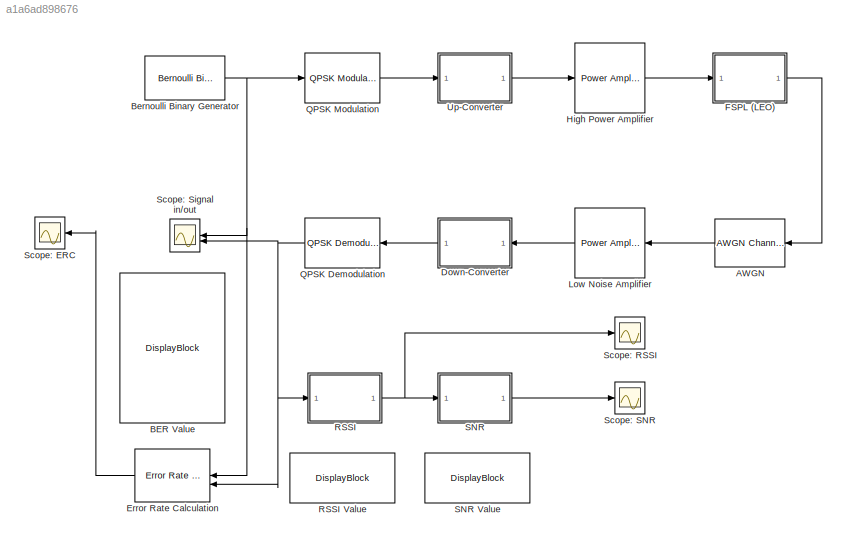
MODEL slx_a1a6ad898676
KIND model
CONFIG AbsTol = auto
CONFIG EnableMultiTasking = off
CONFIG FixedStep = auto
CONFIG MaxStep = auto
CONFIG MinStep = auto
CONFIG RelTol = 1e-3
CONFIG SampleTimeConstraint = Unconstrained
CONFIG SolverName = VariableStepAuto
CONFIG StartTime = 0.0
CONFIG StopTime = 10
BLOCK [Reference] AWGN  REF=commchan3/AWGN
Channel
  NameLocation = top
  SourceBlock = commchan3/AWGN\nChannel
  SourceType = AWGN Channel
BLOCK [DisplayBlock] BER Value
  Transparency = 1
BLOCK [Reference] Bernoulli Binary Generator  REF=commrandsrc3/Bernoulli Binary
Generator
  SourceBlock = commrandsrc3/Bernoulli Binary\nGenerator
  SourceType = Bernoulli Binary Generator
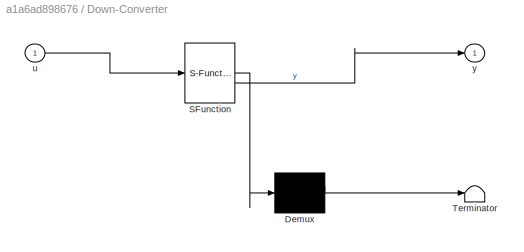
BLOCK [SubSystem] Down-Converter
  ErrorFcn = Stateflow.Translate.translate
  LibrarySourceBlock = simulink/User-Defined\nFunctions/MATLAB Function
  NameLocation = top
  PermitHierarchicalResolution = ExplicitOnly
  SFBlockType = MATLAB Function
  TreatAsAtomicUnit = on
BLOCK [Demux] Down-Converter/ Demux 
  Outputs = 1
BLOCK [S-Function] Down-Converter/ SFunction 
  EnableBusSupport = on
  FunctionName = sf_sfun
  PortCounts = [1 2]
  SFcnIsStateOwnerBlock = off
  SFunctionDeploymentMode = off
  Tag = Stateflow S-Function 5
BLOCK [Terminator] Down-Converter/ Terminator 
BLOCK [Inport] Down-Converter/u
BLOCK [Outport] Down-Converter/y
BLOCK [Reference] Error Rate Calculation  REF=commsink2/Error Rate
Calculation
  NameLocation = top
  SourceBlock = commsink2/Error Rate\nCalculation
  SourceType = Error Rate Calculation
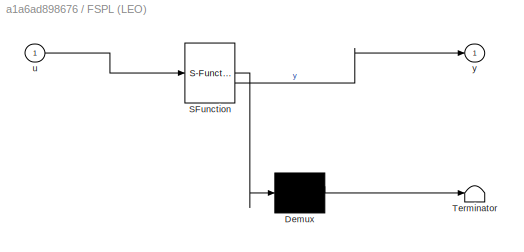
BLOCK [SubSystem] FSPL (LEO)
  ErrorFcn = Stateflow.Translate.translate
  LibrarySourceBlock = simulink/User-Defined\nFunctions/MATLAB Function
  PermitHierarchicalResolution = ExplicitOnly
  SFBlockType = MATLAB Function
  TreatAsAtomicUnit = on
BLOCK [Demux] FSPL (LEO)/ Demux 
  Outputs = 1
BLOCK [S-Function] FSPL (LEO)/ SFunction 
  EnableBusSupport = on
  FunctionName = sf_sfun
  PortCounts = [1 2]
  SFcnIsStateOwnerBlock = off
  SFunctionDeploymentMode = off
  Tag = Stateflow S-Function 3
BLOCK [Terminator] FSPL (LEO)/ Terminator 
BLOCK [Inport] FSPL (LEO)/u
BLOCK [Outport] FSPL (LEO)/y
BLOCK [Reference] High Power Amplifier  REF=rfmathmodels2/Power Amplifier
  SourceBlock = rfmathmodels2/Power Amplifier
  SourceType = rf.PAmemory
BLOCK [Reference] Low Noise Amplifier  REF=rfmathmodels2/Power Amplifier
  NameLocation = top
  SourceBlock = rfmathmodels2/Power Amplifier
  SourceType = rf.PAmemory
BLOCK [Reference] QPSK Demodulation  REF=commdigbbndpm3/QPSK
Demodulator
Baseband
  NameLocation = top
  SourceBlock = commdigbbndpm3/QPSK\nDemodulator\nBaseband
  SourceType = QPSK Demodulator Baseband
BLOCK [Reference] QPSK Modulation  REF=commdigbbndpm3/QPSK
Modulator
Baseband
  SourceBlock = commdigbbndpm3/QPSK\nModulator\nBaseband
  SourceType = QPSK Modulator Baseband
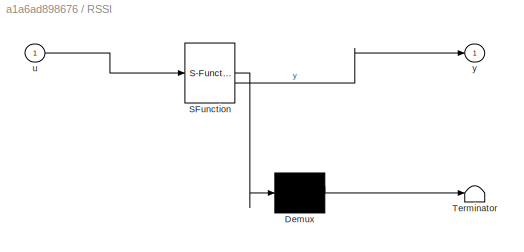
BLOCK [SubSystem] RSSI
  ErrorFcn = Stateflow.Translate.translate
  LibrarySourceBlock = simulink/User-Defined\nFunctions/MATLAB Function
  PermitHierarchicalResolution = ExplicitOnly
  SFBlockType = MATLAB Function
  TreatAsAtomicUnit = on
BLOCK [DisplayBlock] RSSI Value
  Transparency = 1
BLOCK [Demux] RSSI/ Demux 
  Outputs = 1
BLOCK [S-Function] RSSI/ SFunction 
  EnableBusSupport = on
  FunctionName = sf_sfun
  PortCounts = [1 2]
  SFcnIsStateOwnerBlock = off
  SFunctionDeploymentMode = off
  Tag = Stateflow S-Function 2
BLOCK [Terminator] RSSI/ Terminator 
BLOCK [Inport] RSSI/u
BLOCK [Outport] RSSI/y
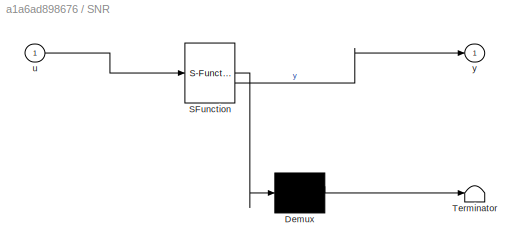
BLOCK [SubSystem] SNR
  ErrorFcn = Stateflow.Translate.translate
  LibrarySourceBlock = simulink/User-Defined\nFunctions/MATLAB Function
  PermitHierarchicalResolution = ExplicitOnly
  SFBlockType = MATLAB Function
  TreatAsAtomicUnit = on
BLOCK [DisplayBlock] SNR Value
  Transparency = 1
BLOCK [Demux] SNR/ Demux 
  Outputs = 1
BLOCK [S-Function] SNR/ SFunction 
  EnableBusSupport = on
  FunctionName = sf_sfun
  PortCounts = [1 2]
  SFcnIsStateOwnerBlock = off
  SFunctionDeploymentMode = off
  Tag = Stateflow S-Function 1
BLOCK [Terminator] SNR/ Terminator 
BLOCK [Inport] SNR/u
BLOCK [Outport] SNR/y
BLOCK [Scope] Scope: ERC
  Floating = off
  NameLocation = top
  NumInputPorts = 1
  ScopeSpecificationString = Simulink.scopes.TimeScopeBlockCfg('CurrentConfiguration', extmgr.ConfigurationSet(extmgr.Configuration('Core','General UI',true),extmgr.Configuration('Core','Source UI',true),extmgr.Configuration('Sources','WiredSimulink',true,'DataLoggingVariableName','ScopeData1'),extmgr.Configuration('Visuals','Time Domain',true,'SerializedDisplays',{struct('MinYLimReal','-78.63458','MaxYLimReal','-66.70654','Y...<+1489ch>
BLOCK [Scope] Scope: RSSI
  Floating = off
  NumInputPorts = 1
  ScopeSpecificationString = Simulink.scopes.TimeScopeBlockCfg('CurrentConfiguration', extmgr.ConfigurationSet(extmgr.Configuration('Core','General UI',true),extmgr.Configuration('Core','Source UI',true),extmgr.Configuration('Sources','WiredSimulink',true,'DataLoggingVariableName','ScopeData1'),extmgr.Configuration('Visuals','Time Domain',true,'SerializedDisplays',{struct('MinYLimReal','-78.63458','MaxYLimReal','-66.70654','Y...<+1371ch>
BLOCK [Scope] Scope: SNR
  Floating = off
  NumInputPorts = 1
  ScopeSpecificationString = Simulink.scopes.TimeScopeBlockCfg('CurrentConfiguration', extmgr.ConfigurationSet(extmgr.Configuration('Core','General UI',true),extmgr.Configuration('Core','Source UI',true),extmgr.Configuration('Sources','WiredSimulink',true),extmgr.Configuration('Visuals','Time Domain',true,'SerializedDisplays',{struct('MinYLimReal','22.34265','MaxYLimReal','34.27069','YLabelReal','','MinYLimMag','22.34265','Ma...<+1357ch>
BLOCK [Scope] Scope: Signal in//out
  Floating = off
  NameLocation = top
  NumInputPorts = 2
  ScopeSpecificationString = Simulink.scopes.TimeScopeBlockCfg('CurrentConfiguration', extmgr.ConfigurationSet(extmgr.Configuration('Core','General UI',true),extmgr.Configuration('Core','Source UI',true),extmgr.Configuration('Sources','WiredSimulink',true,'DataLoggingVariableName','ScopeData2'),extmgr.Configuration('Visuals','Time Domain',true,'SerializedDisplays',{struct('MinYLimReal','1.68558','MaxYLimReal','1.6858','YLabel...<+1446ch>
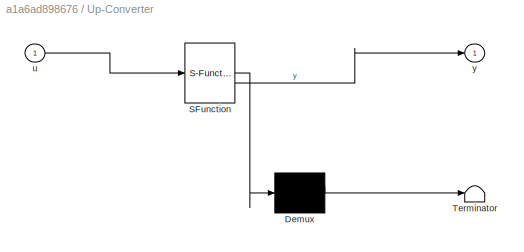
BLOCK [SubSystem] Up-Converter
  ErrorFcn = Stateflow.Translate.translate
  LibrarySourceBlock = simulink/User-Defined\nFunctions/MATLAB Function
  PermitHierarchicalResolution = ExplicitOnly
  SFBlockType = MATLAB Function
  TreatAsAtomicUnit = on
BLOCK [Demux] Up-Converter/ Demux 
  Outputs = 1
BLOCK [S-Function] Up-Converter/ SFunction 
  EnableBusSupport = on
  FunctionName = sf_sfun
  PortCounts = [1 2]
  SFcnIsStateOwnerBlock = off
  SFunctionDeploymentMode = off
  Tag = Stateflow S-Function 4
BLOCK [Terminator] Up-Converter/ Terminator 
BLOCK [Inport] Up-Converter/u
BLOCK [Outport] Up-Converter/y
LINE AWGN:1 -> Low Noise Amplifier:1
NET Bernoulli Binary Generator:1 -> Error Rate Calculation:1, QPSK Modulation:1, Scope: Signal in//out:1
LINE Down-Converter:1 -> QPSK Demodulation:1
LINE Error Rate Calculation:1 -> Scope: ERC:1
LINE FSPL (LEO):1 -> AWGN:1
LINE High Power Amplifier:1 -> FSPL (LEO):1
LINE Low Noise Amplifier:1 -> Down-Converter:1
NET QPSK Demodulation:1 -> Error Rate Calculation:2, RSSI:1, Scope: Signal in//out:2
LINE QPSK Modulation:1 -> Up-Converter:1
NET RSSI:1 -> SNR:1, Scope: RSSI:1
LINE SNR:1 -> Scope: SNR:1
LINE Up-Converter:1 -> High Power Amplifier:1
note: NET lines group one-source signal fan-out (src -> all destinations, sorted); 1:1 wires keep LINE
CHART RSSI states=1 transitions=1
  STATE_LABEL 'eML_blk_kernel()'
  STATE_LABEL 'SCRIPT:\nfunction y = fcn(u)\nP_TX = 40; % dBm (başlangıç gücü)\nG_TX = 30; % dBi (antenn kazancı, PA_TX_Combined’da dahil)\nG_RX = 20; % dBi (alıcı kazancı)\nd = 500e3; % Mesafe (m)\nf = 2e9; % Frekans (Hz)\nc = 3e8; % Işık hızı\nL_other = 5; % Diğer kayıplar (dB)\nFSPL = 20*log10(d) + 20*log10(f) + 20*log10(4*pi/c);\nsignal_power = mean(abs(u).^2); % Kompleks sinyalin gücü\nsignal_power_dBm = 10*log10(sign...<+106ch>'
CHART FSPL (LEO) states=1 transitions=1
  STATE_LABEL 'eML_blk_kernel()'
  STATE_LABEL 'SCRIPT:\nfunction y = fcn(u)\nd = 500e3; % Mesafe (m)\nf = 2e9; % Frekans (Hz)\nc = 3e8; % Işık hızı (m/s)\nFSPL = 20*log10(d) + 20*log10(f) + 20*log10(4*pi/c); % dB\ny = u / (10^(FSPL/20)); % Sinyali zayıflat'
CHART Up-Converter states=1 transitions=1
  STATE_LABEL 'eML_blk_kernel()'
  STATE_LABEL 'SCRIPT:\nfunction y = fcn(u)\n% Giriş sinyali skaler veya vektör olabilir\nfc = 12e9; % Taşıyıcı frekansı (2 GHz)\nTs = 1/1e6; % Örnekleme süresi (1 MHz, Bernoulli ile uyumlu)\npersistent t; % Zamanı saklamak için kalıcı değişken\nif isempty(t)\n    t = 0; % Başlangıçta t=0\nend\ny = u .* exp(1j*2*pi*fc*t); % Sinyali RF’ye kaydır\nt = t + Ts; % Zamanı bir örnek artır'
CHART Down-Converter states=1 transitions=1
  STATE_LABEL 'eML_blk_kernel()'
  STATE_LABEL 'SCRIPT:\nfunction y = fcn(u)\n% Giriş sinyali skaler veya vektör olabilir\nfc = 2e9; % Taşıyıcı frekansı (2 GHz)\nTs = 1/1e6; % Örnekleme süresi (1 MHz)\npersistent t; % Zamanı saklamak için kalıcı değişken\nif isempty(t)\n    t = 0; % Başlangıçta t=0\nend\ny = u .* exp(-1j*2*pi*fc*t); % Sinyali baseband’e indir\nt = t + Ts; % Zamanı bir örnek artır'
CHART SNR states=1 transitions=1
  STATE_LABEL 'eML_blk_kernel()'
  STATE_LABEL 'SCRIPT:\nfunction y = fcn(u)\nk = 1.38e-23; % Boltzmann sabiti\nT = 290; % Sıcaklık (K)\nB = 10e6; % Bant genişliği (Hz)\nNF = 3; % Gürültü faktörü (dB)\nN_dBm = 10*log10(k*T*B*1000) + NF; % Gürültü gücü\ny = u - N_dBm; % SNR (dB)'
CHART  states=0 transitions=0
CHART  states=0 transitions=0
CHART  states=0 transitions=0
CHART  states=0 transitions=0
CHART  states=0 transitions=0
